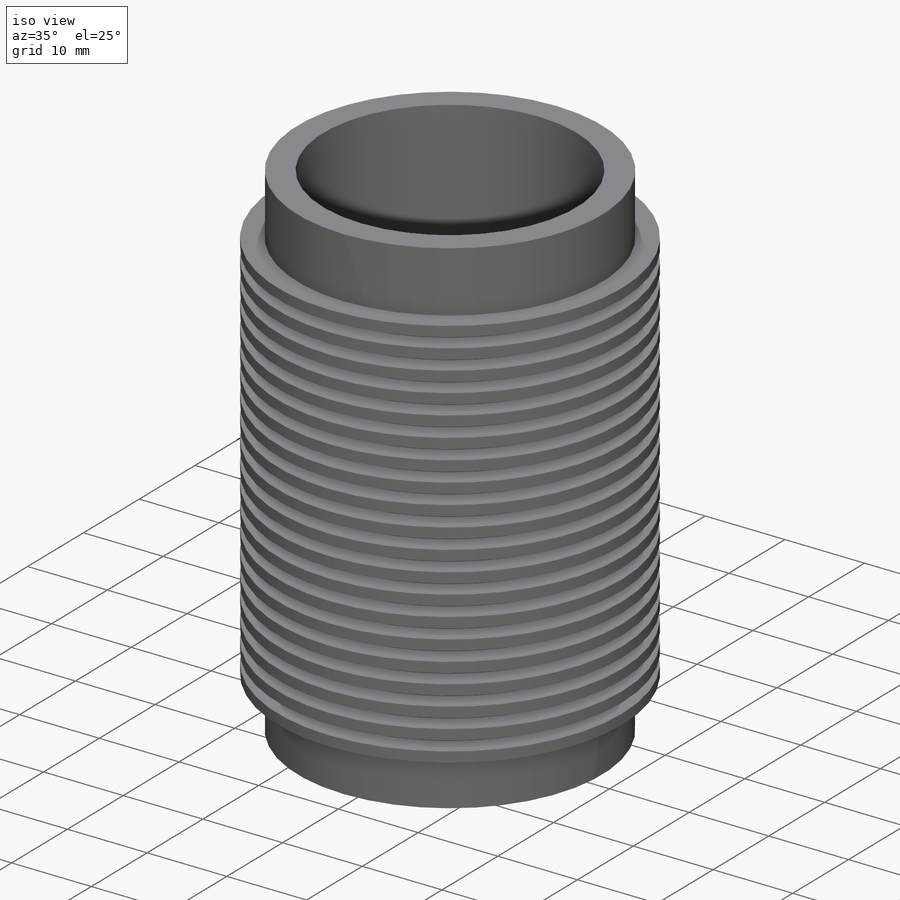
[diagram: iso view]
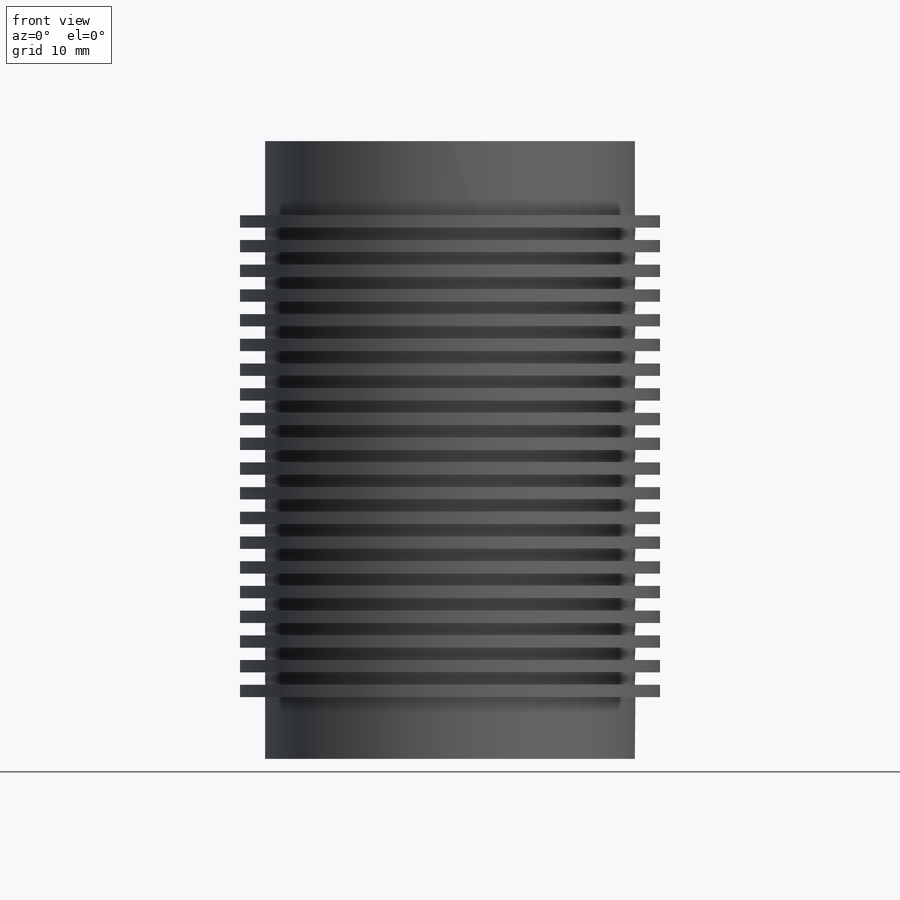
[diagram: front view]
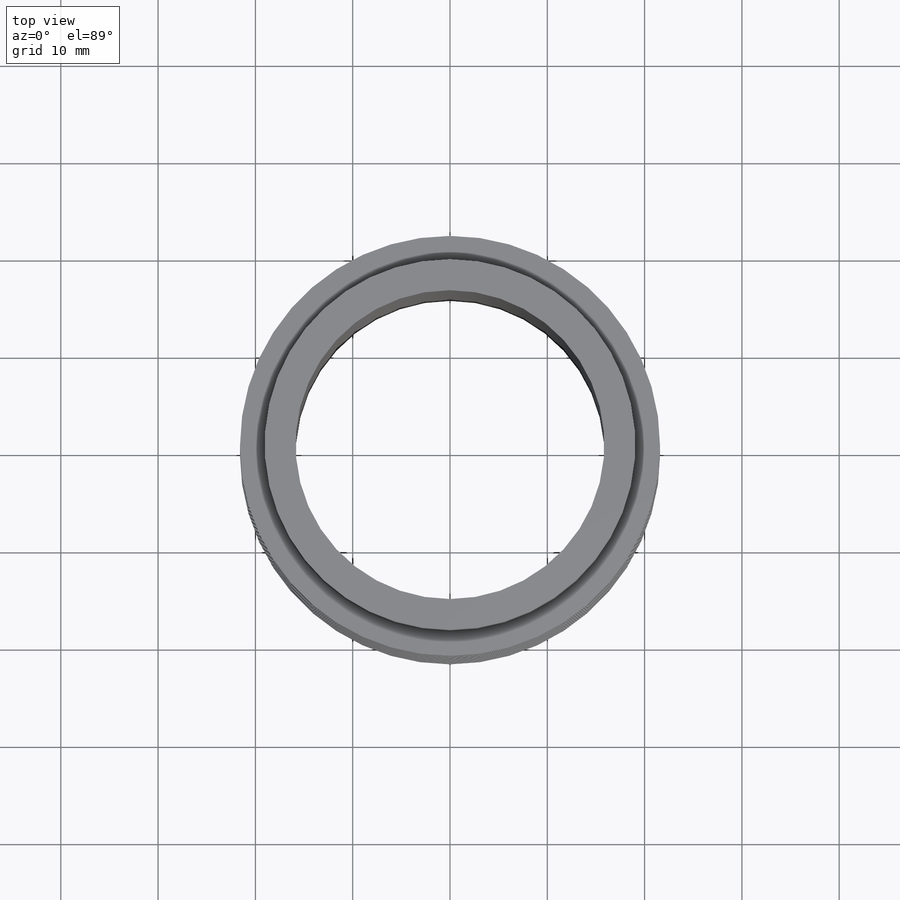
[diagram: top view]
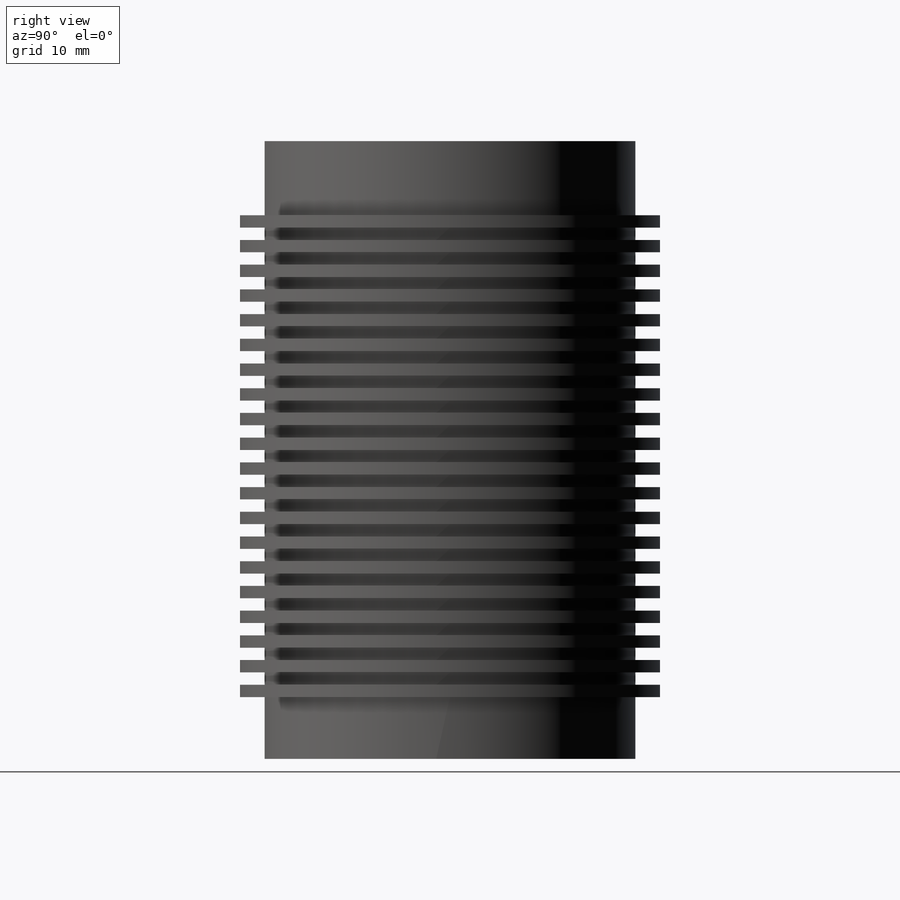
[diagram: right view]
SOLIDWORKS PART (.sldprt)
format: sldprt  version: not decoded by parser v0  size: 165,888 bytes
history: native  units: mm
features: sketch x3, material x1, extrude x1, cut_extrude x1, pattern_linear x1 (+11 scaffold rows collapsed)
feature tree (18):
  scaffold x11  (default folders/planes/origin — collapsed)
  material  "Material <not specified>"
  sketch  "Sketch1"  dims[D1=38.1mm]
  extrude  "Extrude1"  Depth=31.75mm
  sketch  "Sketch2"  dims[D1=31.75mm]
  cut_extrude  "Cut-Extrude1"  [1 undecoded]
  sketch  "Sketch3"  dims[c1.D1=43.18mm c2.D1=1.27mm c2.D5=2.54mm c2.D6=1.0mm c2.D7=5.0mm]
  pattern_linear  "LPattern1"  Count1=11 Count2=10 Spacing1=2.54mm Spacing2=2.54mm
decode coverage: 5 of 6 modeling features carry decoded parameters
note: 1 parameter value undecoded
note: suppression state not decoded; provenance and decode notes live in map.json
